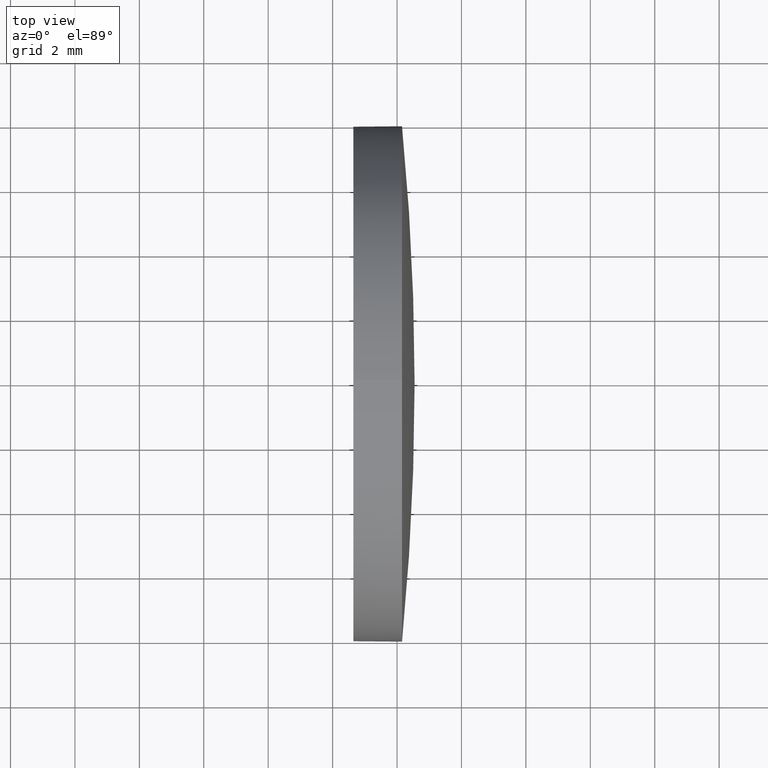
[diagram: clean part render]
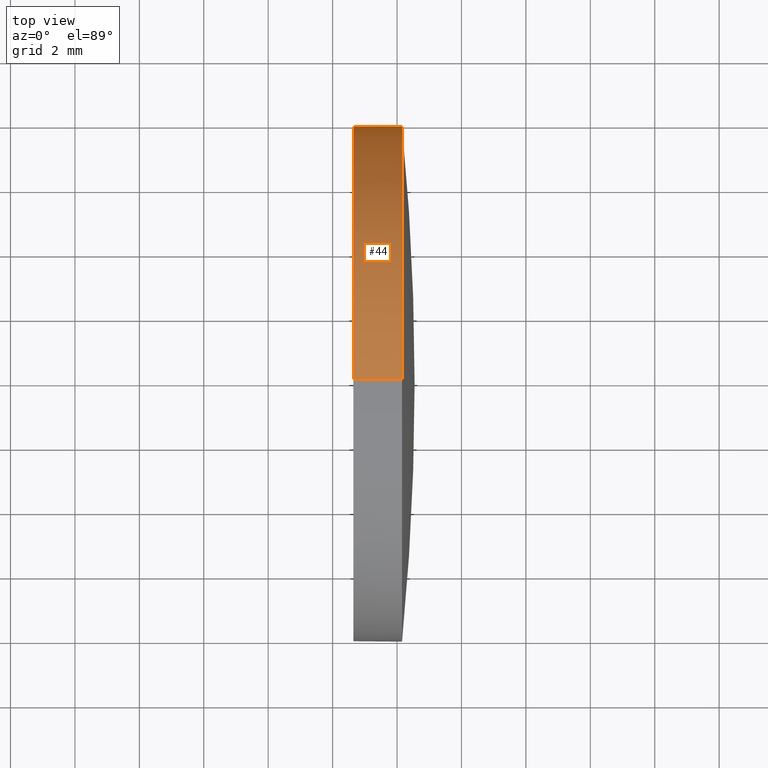
[diagram: same view with one face highlighted and labeled with its STEP entity id]
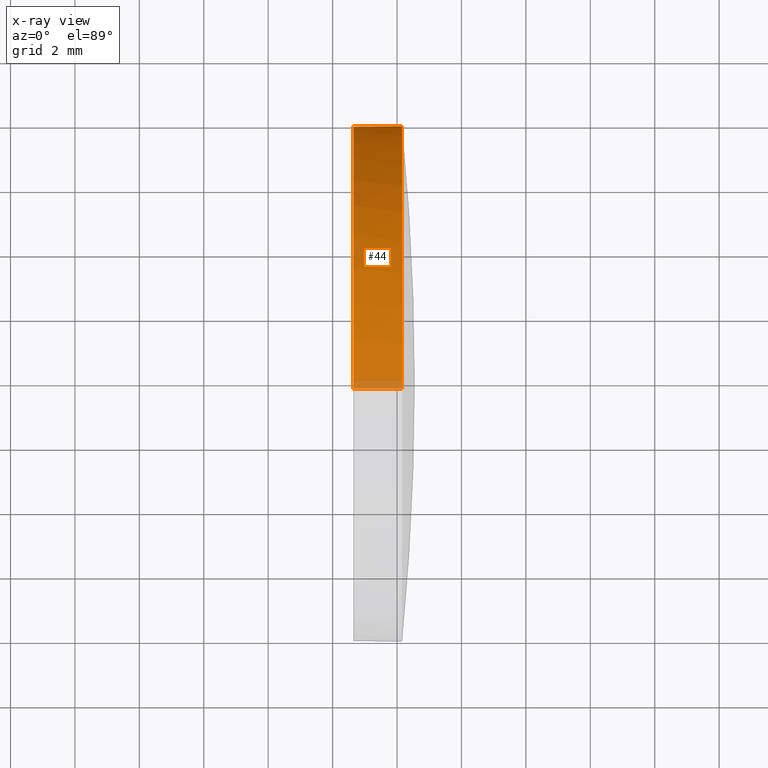
[diagram: x-ray of the same camera — body ghosted, the highlighted face saturated]
A machine part, top view. The second image highlights one B-rep face of the part: STEP entity #44.
The next image is the same camera in x-ray: the body ghosted, the highlighted face saturated — about 3% of this face is hidden behind the body in this view.
In plain terms, the highlighted cylindrical surface (partial cylindrical patch) has radius 8 mm, axis along (-1, -0, -0).
Its self-contained STEP definition (entity closure, byte-faithful):
#7 = LINE ( 'NONE', #89, #82 ) ;
#12 = ORIENTED_EDGE ( 'NONE', *, *, #63, .T. ) ;
#18 = CARTESIAN_POINT ( 'NONE',  ( 442.1552059022058100, 159.9103429002037700, 0.0000000000000000000 ) ) ;
#23 = CARTESIAN_POINT ( 'NONE',  ( 440.6452059022058700, 159.9103429002037700, 7.999999999999979600 ) ) ;
#24 = ORIENTED_EDGE ( 'NONE', *, *, #43, .F. ) ;
#32 = VECTOR ( 'NONE', #64, 1000.000000000000000 ) ;
#33 = DIRECTION ( 'NONE',  ( -1.000000000000000000, -0.0000000000000000000, -0.0000000000000000000 ) ) ;
#34 = DIRECTION ( 'NONE',  ( 0.0000000000000000000, 0.0000000000000000000, 1.000000000000000000 ) ) ;
#38 = FACE_OUTER_BOUND ( 'NONE', #98, .T. ) ;
#41 = DIRECTION ( 'NONE',  ( -1.000000000000000000, -0.0000000000000000000, -0.0000000000000000000 ) ) ;
#43 = EDGE_CURVE ( 'NONE', #141, #108, #65, .T. ) ;
#44 = ADVANCED_FACE ( 'NONE', ( #38 ), #168, .T. ) ;
#47 = DIRECTION ( 'NONE',  ( 0.0000000000000000000, 0.0000000000000000000, 1.000000000000000000 ) ) ;
#50 = CARTESIAN_POINT ( 'NONE',  ( 442.1552059022058100, 159.9103429002037700, 0.0000000000000000000 ) ) ;
#51 = EDGE_CURVE ( 'NONE', #143, #80, #175, .T. ) ;
#59 = AXIS2_PLACEMENT_3D ( 'NONE', #144, #131, #47 ) ;
#63 = EDGE_CURVE ( 'NONE', #80, #87, #165, .T. ) ;
#64 = DIRECTION ( 'NONE',  ( -1.000000000000000000, -0.0000000000000000000, -0.0000000000000000000 ) ) ;
#65 = CIRCLE ( 'NONE', #59, 7.999999999999979600 ) ;
#70 = LINE ( 'NONE', #120, #32 ) ;
#75 = DIRECTION ( 'NONE',  ( 0.0000000000000000000, 0.0000000000000000000, 1.000000000000000000 ) ) ;
#80 = VERTEX_POINT ( 'NONE', #125 ) ;
#82 = VECTOR ( 'NONE', #159, 1000.000000000000000 ) ;
#84 = AXIS2_PLACEMENT_3D ( 'NONE', #18, #186, #34 ) ;
#85 = DIRECTION ( 'NONE',  ( 0.0000000000000000000, 0.0000000000000000000, 1.000000000000000000 ) ) ;
#86 = CARTESIAN_POINT ( 'NONE',  ( 442.1552059022058100, 159.9103429002037700, -7.999999999999979600 ) ) ;
#87 = VERTEX_POINT ( 'NONE', #86 ) ;
#89 = CARTESIAN_POINT ( 'NONE',  ( 438.7223891973601400, 159.9103429002037700, -7.999999999999979600 ) ) ;
#92 = CARTESIAN_POINT ( 'NONE',  ( 440.6452059022058700, 159.9103429002037700, -7.999999999999979600 ) ) ;
#98 = EDGE_LOOP ( 'NONE', ( #12, #133, #24, #152, #130 ) ) ;
#102 = CARTESIAN_POINT ( 'NONE',  ( 438.7223891973601400, 159.9103429002037700, 0.0000000000000000000 ) ) ;
#108 = VERTEX_POINT ( 'NONE', #92 ) ;
#117 = EDGE_CURVE ( 'NONE', #143, #141, #70, .T. ) ;
#120 = CARTESIAN_POINT ( 'NONE',  ( 438.7223891973601400, 159.9103429002037700, 7.999999999999979600 ) ) ;
#122 = CARTESIAN_POINT ( 'NONE',  ( 442.1552059022058100, 159.9103429002037700, 7.999999999999979600 ) ) ;
#125 = CARTESIAN_POINT ( 'NONE',  ( 442.1552059022058100, 167.9103429002038600, 9.797174393178616600E-016 ) ) ;
#130 = ORIENTED_EDGE ( 'NONE', *, *, #51, .T. ) ;
#131 = DIRECTION ( 'NONE',  ( -1.000000000000000000, -0.0000000000000000000, -0.0000000000000000000 ) ) ;
#133 = ORIENTED_EDGE ( 'NONE', *, *, #164, .T. ) ;
#134 = AXIS2_PLACEMENT_3D ( 'NONE', #102, #33, #85 ) ;
#141 = VERTEX_POINT ( 'NONE', #23 ) ;
#143 = VERTEX_POINT ( 'NONE', #122 ) ;
#144 = CARTESIAN_POINT ( 'NONE',  ( 440.6452059022058700, 159.9103429002037700, 0.0000000000000000000 ) ) ;
#152 = ORIENTED_EDGE ( 'NONE', *, *, #117, .F. ) ;
#159 = DIRECTION ( 'NONE',  ( -1.000000000000000000, -0.0000000000000000000, -0.0000000000000000000 ) ) ;
#164 = EDGE_CURVE ( 'NONE', #87, #108, #7, .T. ) ;
#165 = CIRCLE ( 'NONE', #181, 7.999999999999979600 ) ;
#168 = CYLINDRICAL_SURFACE ( 'NONE', #134, 7.999999999999979600 ) ;
#175 = CIRCLE ( 'NONE', #84, 7.999999999999979600 ) ;
#181 = AXIS2_PLACEMENT_3D ( 'NONE', #50, #41, #75 ) ;
#186 = DIRECTION ( 'NONE',  ( -1.000000000000000000, -0.0000000000000000000, -0.0000000000000000000 ) ) ;